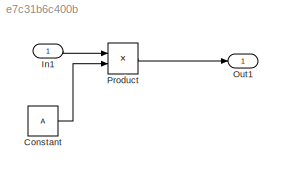
MODEL slx_e7c31b6c400b
KIND model
WORKSPACE source: MAT-file member
WORKSPACE A = 5
BLOCK [Constant] Constant
  Value = A
BLOCK [Inport] In1
  IconDisplay = Port number
BLOCK [Outport] Out1
  IconDisplay = Port number
BLOCK [Product] Product
  InputSameDT = off
  OutDataTypeStr = Inherit: Inherit via internal rule
  Ports = [2, 1]
  RndMeth = Floor
  SaturateOnIntegerOverflow = off
LINE Constant:1 -> Product:2
LINE In1:1 -> Product:1
LINE Product:1 -> Out1:1
